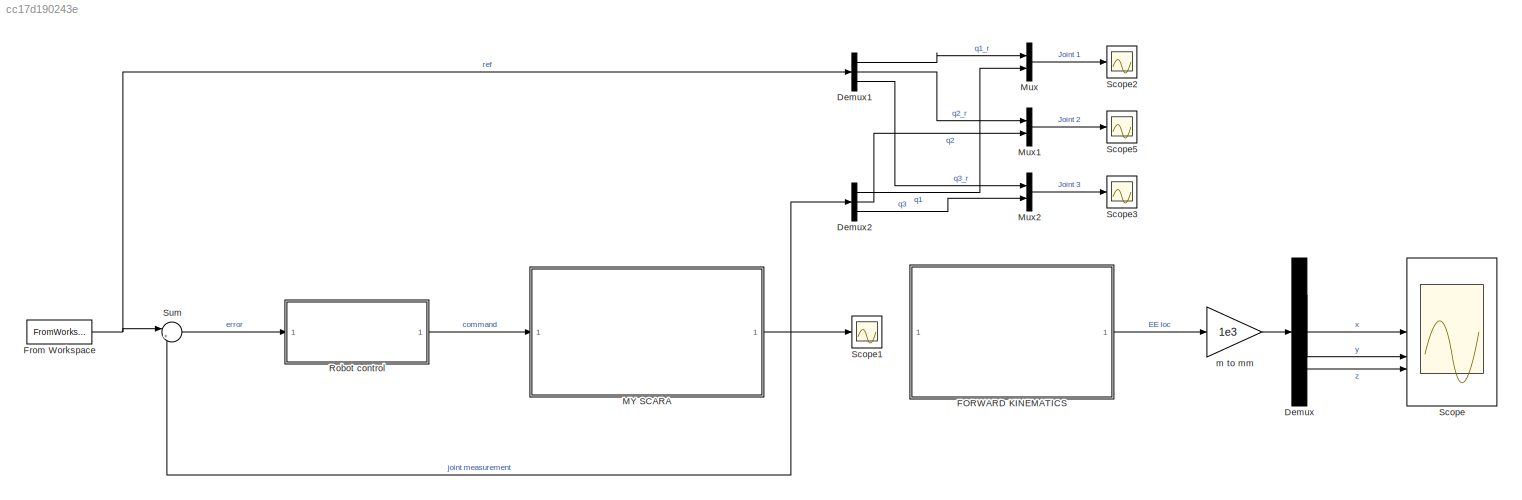
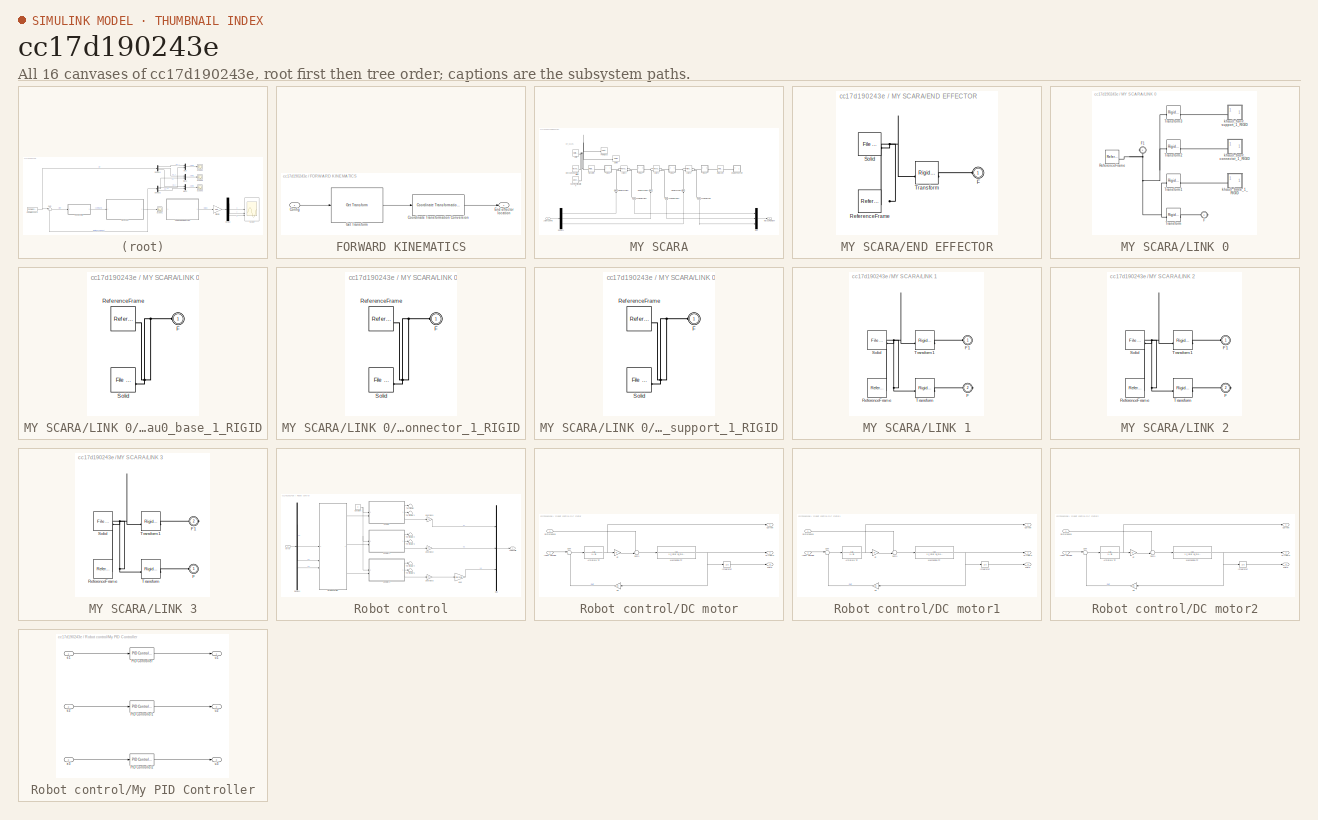
[diagram: thumbnail index - all 16 canvases of the model, root first then tree order]
MODEL slx_cc17d190243e
KIND model
CONFIG AbsTol = auto
CONFIG EnableMultiTasking = on
CONFIG FixedStep = 0.001
CONFIG MaxStep = auto
CONFIG MinStep = auto
CONFIG RelTol = 1e-3
CONFIG SampleTimeConstraint = Unconstrained
CONFIG SolverName = ode4
CONFIG StartTime = 0.0
CONFIG StopTime = 8
BLOCK [Demux] Demux
  Commented = on
  Outputs = 3
BLOCK [Demux] Demux1
  Outputs = 3
BLOCK [Demux] Demux2
  Outputs = 3
BLOCK [SubSystem] FORWARD KINEMATICS
  Commented = on
BLOCK [Inport] FORWARD KINEMATICS/Config
BLOCK [Reference] FORWARD KINEMATICS/Coordinate Transformation Conversion  REF=robotcorelib/Coordinate Transformation Conversion
  LibrarySourceBlock = robotutilslib/Coordinate Transformation Conversion
  SourceBlock = robotcorelib/Coordinate Transformation Conversion
  SourceType = robotics.slcore.internal.block.CoordinateTransformationConversion
BLOCK [Outport] FORWARD KINEMATICS/End effector location
BLOCK [Reference] FORWARD KINEMATICS/Get Transform  REF=robotmaniplib/Get Transform
  SourceBlock = robotmaniplib/Get Transform
  SourceType = Get Transform
BLOCK [FromWorkspace] From Workspace
  OutputAfterFinalValue = Holding final value
  VariableName = dataJoint_load
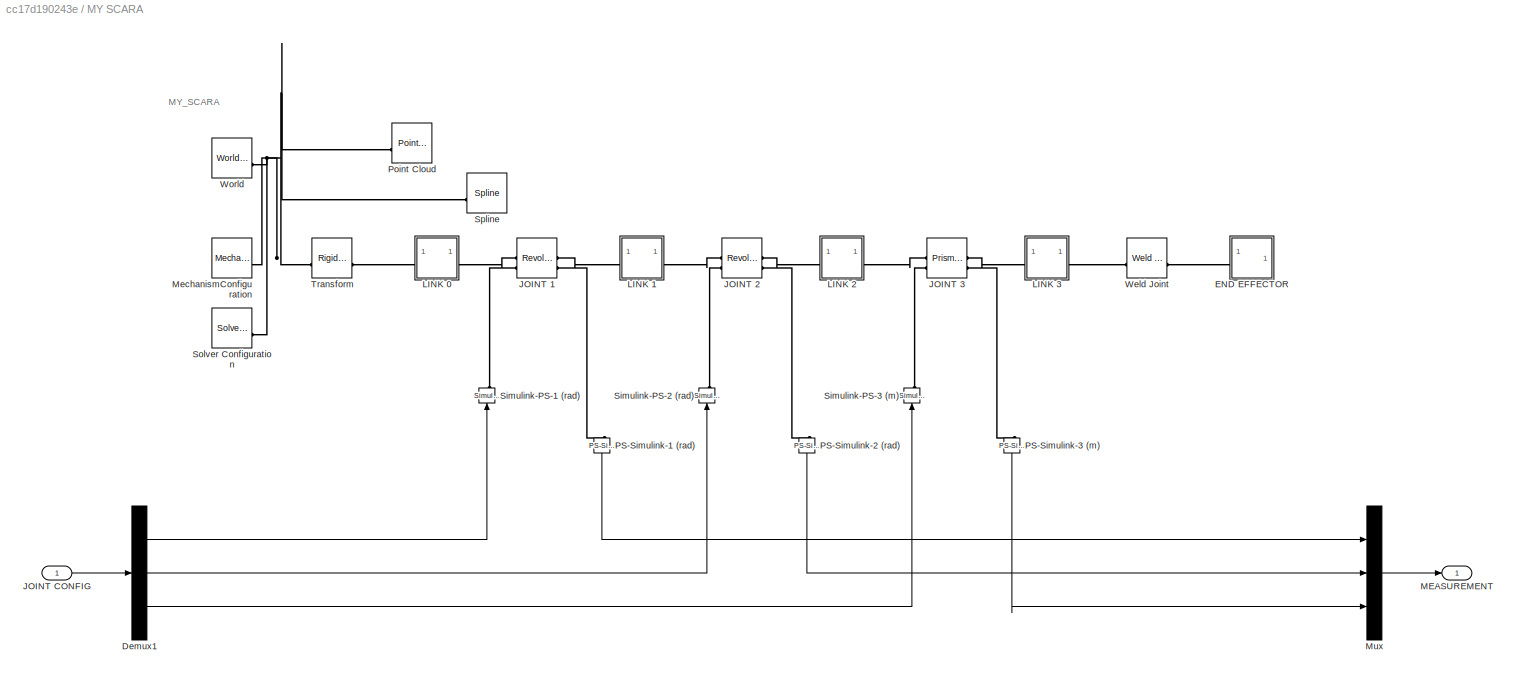
BLOCK [SubSystem] MY SCARA
BLOCK [Demux] MY SCARA/Demux1
  Outputs = 3
BLOCK [SubSystem] MY SCARA/END EFFECTOR
BLOCK [PMIOPort] MY SCARA/END EFFECTOR/F
  Side = Left
BLOCK [Reference] MY SCARA/END EFFECTOR/ReferenceFrame  REF=sm_lib/Frames and
Transforms/Reference
Frame
  SourceBlock = sm_lib/Frames and\nTransforms/Reference\nFrame
  SourceType = Reference\nFrame
BLOCK [Reference] MY SCARA/END EFFECTOR/Solid  REF=sm_lib/Body Elements/File Solid
  SourceBlock = sm_lib/Body Elements/File Solid
  SourceType = File Solid
BLOCK [Reference] MY SCARA/END EFFECTOR/Transform  REF=sm_lib/Frames and
Transforms/Rigid
Transform
  SourceBlock = sm_lib/Frames and\nTransforms/Rigid\nTransform
  SourceType = Rigid\nTransform
BLOCK [Reference] MY SCARA/JOINT 1  REF=sm_lib/Joints/Revolute Joint
  SourceBlock = sm_lib/Joints/Revolute Joint
  SourceType = Revolute Joint
BLOCK [Reference] MY SCARA/JOINT 2  REF=sm_lib/Joints/Revolute Joint
  SourceBlock = sm_lib/Joints/Revolute Joint
  SourceType = Revolute Joint
BLOCK [Reference] MY SCARA/JOINT 3  REF=sm_lib/Joints/Prismatic
Joint
  SourceBlock = sm_lib/Joints/Prismatic\nJoint
  SourceType = Prismatic\nJoint
BLOCK [Inport] MY SCARA/JOINT CONFIG
BLOCK [SubSystem] MY SCARA/LINK 0
BLOCK [PMIOPort] MY SCARA/LINK 0/F
  Port = 2
  Side = Right
BLOCK [PMIOPort] MY SCARA/LINK 0/F1
  Side = Left
BLOCK [Reference] MY SCARA/LINK 0/ReferenceFrame  REF=sm_lib/Frames and
Transforms/Reference
Frame
  SourceBlock = sm_lib/Frames and\nTransforms/Reference\nFrame
  SourceType = Reference\nFrame
BLOCK [Reference] MY SCARA/LINK 0/Transform  REF=sm_lib/Frames and
Transforms/Rigid
Transform
  SourceBlock = sm_lib/Frames and\nTransforms/Rigid\nTransform
  SourceType = Rigid\nTransform
BLOCK [Reference] MY SCARA/LINK 0/Transform1  REF=sm_lib/Frames and
Transforms/Rigid
Transform
  SourceBlock = sm_lib/Frames and\nTransforms/Rigid\nTransform
  SourceType = Rigid\nTransform
BLOCK [Reference] MY SCARA/LINK 0/Transform2  REF=sm_lib/Frames and
Transforms/Rigid
Transform
  SourceBlock = sm_lib/Frames and\nTransforms/Rigid\nTransform
  SourceType = Rigid\nTransform
BLOCK [Reference] MY SCARA/LINK 0/Transform3  REF=sm_lib/Frames and
Transforms/Rigid
Transform
  SourceBlock = sm_lib/Frames and\nTransforms/Rigid\nTransform
  SourceType = Rigid\nTransform
BLOCK [SubSystem] MY SCARA/LINK 0/khau0_base_1_RIGID
BLOCK [PMIOPort] MY SCARA/LINK 0/khau0_base_1_RIGID/F
  Side = Left
BLOCK [Reference] MY SCARA/LINK 0/khau0_base_1_RIGID/ReferenceFrame  REF=sm_lib/Frames and
Transforms/Reference
Frame
  SourceBlock = sm_lib/Frames and\nTransforms/Reference\nFrame
  SourceType = Reference\nFrame
BLOCK [Reference] MY SCARA/LINK 0/khau0_base_1_RIGID/Solid  REF=sm_lib/Body Elements/File Solid
  SourceBlock = sm_lib/Body Elements/File Solid
  SourceType = File Solid
BLOCK [SubSystem] MY SCARA/LINK 0/khau0_base_connector_1_RIGID
BLOCK [PMIOPort] MY SCARA/LINK 0/khau0_base_connector_1_RIGID/F
  Side = Left
BLOCK [Reference] MY SCARA/LINK 0/khau0_base_connector_1_RIGID/ReferenceFrame  REF=sm_lib/Frames and
Transforms/Reference
Frame
  SourceBlock = sm_lib/Frames and\nTransforms/Reference\nFrame
  SourceType = Reference\nFrame
BLOCK [Reference] MY SCARA/LINK 0/khau0_base_connector_1_RIGID/Solid  REF=sm_lib/Body Elements/File Solid
  SourceBlock = sm_lib/Body Elements/File Solid
  SourceType = File Solid
BLOCK [SubSystem] MY SCARA/LINK 0/khau0_base_support_1_RIGID
BLOCK [PMIOPort] MY SCARA/LINK 0/khau0_base_support_1_RIGID/F
  Side = Left
BLOCK [Reference] MY SCARA/LINK 0/khau0_base_support_1_RIGID/ReferenceFrame  REF=sm_lib/Frames and
Transforms/Reference
Frame
  SourceBlock = sm_lib/Frames and\nTransforms/Reference\nFrame
  SourceType = Reference\nFrame
BLOCK [Reference] MY SCARA/LINK 0/khau0_base_support_1_RIGID/Solid  REF=sm_lib/Body Elements/File Solid
  SourceBlock = sm_lib/Body Elements/File Solid
  SourceType = File Solid
BLOCK [SubSystem] MY SCARA/LINK 1
BLOCK [PMIOPort] MY SCARA/LINK 1/F
  Port = 2
  Side = Right
BLOCK [PMIOPort] MY SCARA/LINK 1/F1
  Side = Left
BLOCK [Reference] MY SCARA/LINK 1/ReferenceFrame  REF=sm_lib/Frames and
Transforms/Reference
Frame
  SourceBlock = sm_lib/Frames and\nTransforms/Reference\nFrame
  SourceType = Reference\nFrame
BLOCK [Reference] MY SCARA/LINK 1/Solid  REF=sm_lib/Body Elements/File Solid
  SourceBlock = sm_lib/Body Elements/File Solid
  SourceType = File Solid
BLOCK [Reference] MY SCARA/LINK 1/Transform  REF=sm_lib/Frames and
Transforms/Rigid
Transform
  SourceBlock = sm_lib/Frames and\nTransforms/Rigid\nTransform
  SourceType = Rigid\nTransform
BLOCK [Reference] MY SCARA/LINK 1/Transform1  REF=sm_lib/Frames and
Transforms/Rigid
Transform
  SourceBlock = sm_lib/Frames and\nTransforms/Rigid\nTransform
  SourceType = Rigid\nTransform
BLOCK [SubSystem] MY SCARA/LINK 2
BLOCK [PMIOPort] MY SCARA/LINK 2/F
  Port = 2
  Side = Right
BLOCK [PMIOPort] MY SCARA/LINK 2/F1
  Side = Left
BLOCK [Reference] MY SCARA/LINK 2/ReferenceFrame  REF=sm_lib/Frames and
Transforms/Reference
Frame
  SourceBlock = sm_lib/Frames and\nTransforms/Reference\nFrame
  SourceType = Reference\nFrame
BLOCK [Reference] MY SCARA/LINK 2/Solid  REF=sm_lib/Body Elements/File Solid
  SourceBlock = sm_lib/Body Elements/File Solid
  SourceType = File Solid
BLOCK [Reference] MY SCARA/LINK 2/Transform  REF=sm_lib/Frames and
Transforms/Rigid
Transform
  SourceBlock = sm_lib/Frames and\nTransforms/Rigid\nTransform
  SourceType = Rigid\nTransform
BLOCK [Reference] MY SCARA/LINK 2/Transform1  REF=sm_lib/Frames and
Transforms/Rigid
Transform
  SourceBlock = sm_lib/Frames and\nTransforms/Rigid\nTransform
  SourceType = Rigid\nTransform
BLOCK [SubSystem] MY SCARA/LINK 3
BLOCK [PMIOPort] MY SCARA/LINK 3/F
  Side = Left
BLOCK [PMIOPort] MY SCARA/LINK 3/F1
  Port = 2
  Side = Right
BLOCK [Reference] MY SCARA/LINK 3/ReferenceFrame  REF=sm_lib/Frames and
Transforms/Reference
Frame
  SourceBlock = sm_lib/Frames and\nTransforms/Reference\nFrame
  SourceType = Reference\nFrame
BLOCK [Reference] MY SCARA/LINK 3/Solid  REF=sm_lib/Body Elements/File Solid
  SourceBlock = sm_lib/Body Elements/File Solid
  SourceType = File Solid
BLOCK [Reference] MY SCARA/LINK 3/Transform  REF=sm_lib/Frames and
Transforms/Rigid
Transform
  SourceBlock = sm_lib/Frames and\nTransforms/Rigid\nTransform
  SourceType = Rigid\nTransform
BLOCK [Reference] MY SCARA/LINK 3/Transform1  REF=sm_lib/Frames and
Transforms/Rigid
Transform
  SourceBlock = sm_lib/Frames and\nTransforms/Rigid\nTransform
  SourceType = Rigid\nTransform
BLOCK [Outport] MY SCARA/MEASUREMENT
BLOCK [Reference] MY SCARA/MechanismConfiguration  REF=sm_lib/Utilities/Mechanism
Configuration
  SourceBlock = sm_lib/Utilities/Mechanism\nConfiguration
  SourceType = Mechanism\nConfiguration
BLOCK [Mux] MY SCARA/Mux
  DisplayOption = bar
  Inputs = 3
BLOCK [Reference] MY SCARA/PS-Simulink-1 (rad)  REF=nesl_utility/PS-Simulink
Converter
  NameLocation = left
  SourceBlock = nesl_utility/PS-Simulink\nConverter
  SourceType = PS-Simulink\nConverter
BLOCK [Reference] MY SCARA/PS-Simulink-2 (rad)  REF=nesl_utility/PS-Simulink
Converter
  NameLocation = left
  SourceBlock = nesl_utility/PS-Simulink\nConverter
  SourceType = PS-Simulink\nConverter
BLOCK [Reference] MY SCARA/PS-Simulink-3 (m)  REF=nesl_utility/PS-Simulink
Converter
  NameLocation = left
  SourceBlock = nesl_utility/PS-Simulink\nConverter
  SourceType = PS-Simulink\nConverter
BLOCK [Reference] MY SCARA/Point Cloud  REF=sm_lib/Curves and Surfaces/Point Cloud
  SourceBlock = sm_lib/Curves and Surfaces/Point Cloud
  SourceType = Point Cloud
BLOCK [Reference] MY SCARA/Simulink-PS-1 (rad)  REF=nesl_utility/Simulink-PS
Converter
  NameLocation = right
  SourceBlock = nesl_utility/Simulink-PS\nConverter
  SourceType = Simulink-PS\nConverter
BLOCK [Reference] MY SCARA/Simulink-PS-2 (rad)  REF=nesl_utility/Simulink-PS
Converter
  NameLocation = right
  SourceBlock = nesl_utility/Simulink-PS\nConverter
  SourceType = Simulink-PS\nConverter
BLOCK [Reference] MY SCARA/Simulink-PS-3 (m)  REF=nesl_utility/Simulink-PS
Converter
  NameLocation = right
  SourceBlock = nesl_utility/Simulink-PS\nConverter
  SourceType = Simulink-PS\nConverter
BLOCK [Reference] MY SCARA/Solver Configuration  REF=nesl_utility/Solver
Configuration
  SourceBlock = nesl_utility/Solver\nConfiguration
  SourceType = Solver\nConfiguration
BLOCK [Reference] MY SCARA/Spline  REF=sm_lib/Curves and Surfaces/Spline
  SourceBlock = sm_lib/Curves and Surfaces/Spline
  SourceType = Spline
BLOCK [Reference] MY SCARA/Transform  REF=sm_lib/Frames and
Transforms/Rigid
Transform
  SourceBlock = sm_lib/Frames and\nTransforms/Rigid\nTransform
  SourceType = Rigid\nTransform
BLOCK [Reference] MY SCARA/Weld Joint  REF=sm_lib/Joints/Weld Joint
  SourceBlock = sm_lib/Joints/Weld Joint
  SourceType = Weld Joint
BLOCK [Reference] MY SCARA/World  REF=sm_lib/Frames and
Transforms/World Frame
  SourceBlock = sm_lib/Frames and\nTransforms/World Frame
  SourceType = World Frame
BLOCK [Mux] Mux
  DisplayOption = bar
  Inputs = 2
BLOCK [Mux] Mux1
  DisplayOption = bar
  Inputs = 2
BLOCK [Mux] Mux2
  DisplayOption = bar
  Inputs = 2
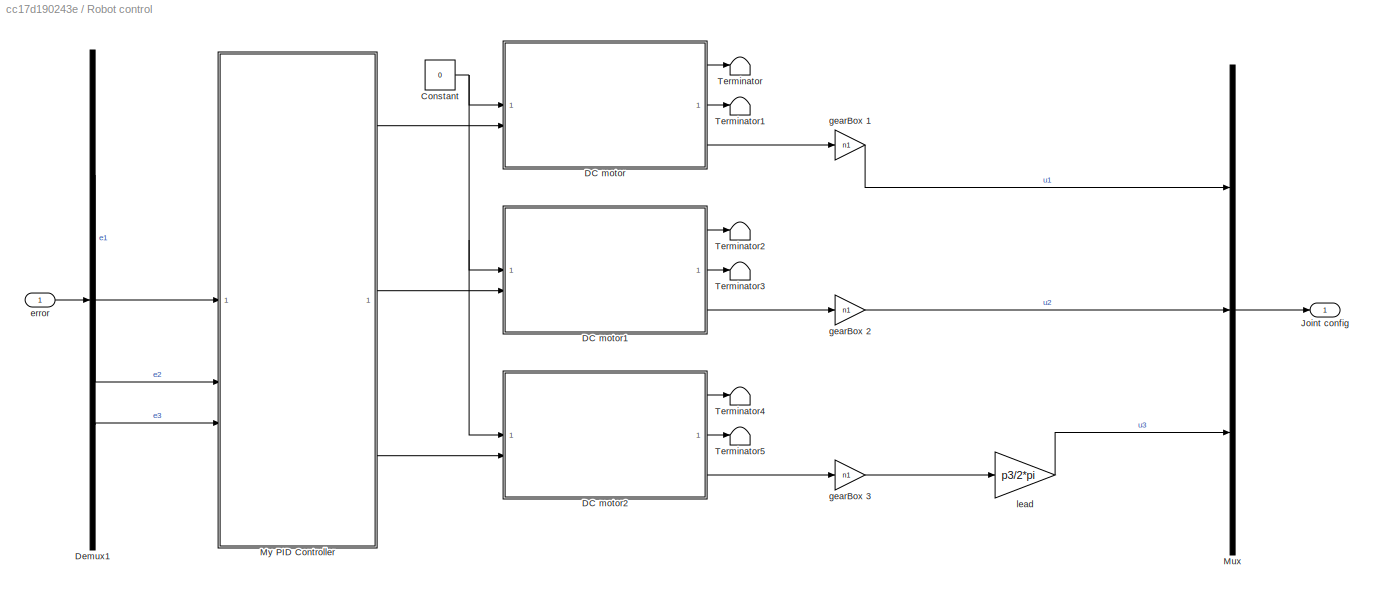
BLOCK [SubSystem] Robot control
BLOCK [Constant] Robot control/Constant
  Value = 0
BLOCK [SubSystem] Robot control/DC motor
BLOCK [TransferFcn] Robot control/DC motor/Armature TF
  Denominator = [L R]
BLOCK [Outport] Robot control/DC motor/Current
BLOCK [Inport] Robot control/DC motor/DIsturbance
BLOCK [Inport] Robot control/DC motor/Input voltage
  Port = 2
BLOCK [Integrator] Robot control/DC motor/Integrator
BLOCK [Gain] Robot control/DC motor/Ke
  Gain = Ke
BLOCK [Gain] Robot control/DC motor/Kt
  Gain = Kt
BLOCK [TransferFcn] Robot control/DC motor/Mechanical TF
  Denominator = [J_rotor B_motor]
BLOCK [Sum] Robot control/DC motor/Sum
  Inputs = |+-
BLOCK [Sum] Robot control/DC motor/Sum1
  Inputs = -+|
BLOCK [Outport] Robot control/DC motor/Theta
  Port = 3
BLOCK [Outport] Robot control/DC motor/w (rad//s)
  Port = 2
BLOCK [SubSystem] Robot control/DC motor1
BLOCK [TransferFcn] Robot control/DC motor1/Armature TF
  Denominator = [L R]
BLOCK [Outport] Robot control/DC motor1/Current
BLOCK [Inport] Robot control/DC motor1/DIsturbance
BLOCK [Inport] Robot control/DC motor1/Input voltage
  Port = 2
BLOCK [Integrator] Robot control/DC motor1/Integrator
BLOCK [Gain] Robot control/DC motor1/Ke
  Gain = Ke
BLOCK [Gain] Robot control/DC motor1/Kt
  Gain = Kt
BLOCK [TransferFcn] Robot control/DC motor1/Mechanical TF
  Denominator = [J_rotor B_motor]
BLOCK [Sum] Robot control/DC motor1/Sum
  Inputs = |+-
BLOCK [Sum] Robot control/DC motor1/Sum1
  Inputs = -+|
BLOCK [Outport] Robot control/DC motor1/Theta
  Port = 3
BLOCK [Outport] Robot control/DC motor1/w (rad//s)
  Port = 2
BLOCK [SubSystem] Robot control/DC motor2
BLOCK [TransferFcn] Robot control/DC motor2/Armature TF
  Denominator = [L R]
BLOCK [Outport] Robot control/DC motor2/Current
BLOCK [Inport] Robot control/DC motor2/DIsturbance
BLOCK [Inport] Robot control/DC motor2/Input voltage
  Port = 2
BLOCK [Integrator] Robot control/DC motor2/Integrator
BLOCK [Gain] Robot control/DC motor2/Ke
  Gain = Ke
BLOCK [Gain] Robot control/DC motor2/Kt
  Gain = Kt
BLOCK [TransferFcn] Robot control/DC motor2/Mechanical TF
  Denominator = [J_rotor B_motor]
BLOCK [Sum] Robot control/DC motor2/Sum
  Inputs = |+-
BLOCK [Sum] Robot control/DC motor2/Sum1
  Inputs = -+|
BLOCK [Outport] Robot control/DC motor2/Theta
  Port = 3
BLOCK [Outport] Robot control/DC motor2/w (rad//s)
  Port = 2
BLOCK [Demux] Robot control/Demux1
  Outputs = 3
BLOCK [Outport] Robot control/Joint config
BLOCK [Mux] Robot control/Mux
  DisplayOption = bar
  Inputs = 3
BLOCK [SubSystem] Robot control/My PID Controller
BLOCK [Reference] Robot control/My PID Controller/PID Controller  REF=slpidlib/PID Controller
  LibrarySourceBlock = simulink/Continuous/PID Controller
  SourceBlock = slpidlib/PID Controller
  SourceType = PID 1dof
BLOCK [Reference] Robot control/My PID Controller/PID Controller1  REF=slpidlib/PID Controller
  LibrarySourceBlock = simulink/Continuous/PID Controller
  SourceBlock = slpidlib/PID Controller
  SourceType = PID 1dof
BLOCK [Reference] Robot control/My PID Controller/PID Controller2  REF=slpidlib/PID Controller
  LibrarySourceBlock = simulink/Continuous/PID Controller
  SourceBlock = slpidlib/PID Controller
  SourceType = PID 1dof
BLOCK [Inport] Robot control/My PID Controller/e1
BLOCK [Inport] Robot control/My PID Controller/e2
  Port = 2
BLOCK [Inport] Robot control/My PID Controller/e3
  Port = 3
BLOCK [Outport] Robot control/My PID Controller/u1
BLOCK [Outport] Robot control/My PID Controller/u2
  Port = 2
BLOCK [Outport] Robot control/My PID Controller/u3
  Port = 3
BLOCK [Terminator] Robot control/Terminator
BLOCK [Terminator] Robot control/Terminator1
BLOCK [Terminator] Robot control/Terminator2
BLOCK [Terminator] Robot control/Terminator3
BLOCK [Terminator] Robot control/Terminator4
BLOCK [Terminator] Robot control/Terminator5
BLOCK [Inport] Robot control/error
BLOCK [Gain] Robot control/gearBox 1
  Gain = n1
BLOCK [Gain] Robot control/gearBox 2
  Gain = n1
BLOCK [Gain] Robot control/gearBox 3
  Gain = n1
BLOCK [Gain] Robot control/lead
  Gain = p3/2*pi
BLOCK [Scope] Scope
  Commented = on
  Floating = off
  NumInputPorts = 3
  ScopeSpecificationString = Simulink.scopes.TimeScopeBlockCfg('CurrentConfiguration', extmgr.ConfigurationSet(extmgr.Configuration('Core','General UI',true),extmgr.Configuration('Core','Source UI',true),extmgr.Configuration('Sources','WiredSimulink',true),extmgr.Configuration('Visuals','Time Domain',true,'SerializedDisplays',{struct('MinYLimReal','236.25','MaxYLimReal','873.75','YLabelReal','X','MinYLimMag','236.25','MaxYLim...<+3001ch>
BLOCK [Scope] Scope1
  Floating = off
  NumInputPorts = 1
  ScopeSpecificationString = Simulink.scopes.TimeScopeBlockCfg('CurrentConfiguration', extmgr.ConfigurationSet(extmgr.Configuration('Core','General UI',true),extmgr.Configuration('Core','Source UI',true),extmgr.Configuration('Sources','WiredSimulink',true,'DataLoggingVariableName','ScopeData1'),extmgr.Configuration('Visuals','Time Domain',true),extmgr.Configuration('Tools','Plot Navigation',true),extmgr.Configuration('Tools',...<+40ch>
BLOCK [Scope] Scope2
  Floating = off
  NumInputPorts = 1
  ScopeSpecificationString = Simulink.scopes.TimeScopeBlockCfg('CurrentConfiguration', extmgr.ConfigurationSet(extmgr.Configuration('Core','General UI',true,'FigureColor',[1 1 1]),extmgr.Configuration('Core','Source UI',true),extmgr.Configuration('Sources','WiredSimulink',true,'DataLoggingVariableName','ScopeData1'),extmgr.Configuration('Visuals','Time Domain',true,'SerializedDisplays',{struct('MinYLimReal','-2.08219','MaxYLi...<+1675ch>
BLOCK [Scope] Scope3
  Floating = off
  NumInputPorts = 1
  ScopeSpecificationString = Simulink.scopes.TimeScopeBlockCfg('CurrentConfiguration', extmgr.ConfigurationSet(extmgr.Configuration('Core','General UI',true,'FigureColor',[1 1 1]),extmgr.Configuration('Core','Source UI',true),extmgr.Configuration('Sources','WiredSimulink',true,'DataLoggingVariableName','ScopeData2'),extmgr.Configuration('Visuals','Time Domain',true,'SerializedDisplays',{struct('MinYLimReal','-0.04574','MaxYLi...<+1669ch>
BLOCK [Scope] Scope5
  Floating = off
  NumInputPorts = 1
  ScopeSpecificationString = Simulink.scopes.TimeScopeBlockCfg('CurrentConfiguration', extmgr.ConfigurationSet(extmgr.Configuration('Core','General UI',true,'FigureColor',[1 1 1]),extmgr.Configuration('Core','Source UI',true),extmgr.Configuration('Sources','WiredSimulink',true,'DataLoggingVariableName','ScopeData4'),extmgr.Configuration('Visuals','Time Domain',true,'SerializedDisplays',{struct('MinYLimReal','-0.25968','MaxYLi...<+1671ch>
BLOCK [Sum] Sum
  Inputs = |+-
BLOCK [Gain] m to mm
  Commented = on
  Gain = 1e3
ANNOTATION MY SCARA: MY_SCARA
LINE Demux1:1 -> Mux:1
LINE Demux1:2 -> Mux1:1
LINE Demux1:3 -> Mux2:1
LINE Demux2:1 -> Mux:2
LINE Demux2:2 -> Mux1:2
LINE Demux2:3 -> Mux2:2
LINE Demux:1 -> Scope:1
LINE Demux:2 -> Scope:2
LINE Demux:3 -> Scope:3
LINE FORWARD KINEMATICS/Config:1 -> FORWARD KINEMATICS/Get Transform:1
LINE FORWARD KINEMATICS/Coordinate Transformation Conversion:1 -> FORWARD KINEMATICS/End effector location:1
LINE FORWARD KINEMATICS/Get Transform:1 -> FORWARD KINEMATICS/Coordinate Transformation Conversion:1
LINE FORWARD KINEMATICS:1 -> m to mm:1
NET From Workspace:1 -> Demux1:1, Sum:1
LINE MY SCARA/Demux1:1 -> MY SCARA/Simulink-PS-1 (rad):1
LINE MY SCARA/Demux1:2 -> MY SCARA/Simulink-PS-2 (rad):1
LINE MY SCARA/Demux1:3 -> MY SCARA/Simulink-PS-3 (m):1
LINE MY SCARA/JOINT CONFIG:1 -> MY SCARA/Demux1:1
LINE MY SCARA/Mux:1 -> MY SCARA/MEASUREMENT:1
LINE MY SCARA/PS-Simulink-1 (rad):1 -> MY SCARA/Mux:1
LINE MY SCARA/PS-Simulink-2 (rad):1 -> MY SCARA/Mux:2
LINE MY SCARA/PS-Simulink-3 (m):1 -> MY SCARA/Mux:3
NET MY SCARA:1 -> Demux2:1, Scope1:1, Sum:2
LINE Mux1:1 -> Scope5:1
LINE Mux2:1 -> Scope3:1
LINE Mux:1 -> Scope2:1
NET Robot control/Constant:1 -> Robot control/DC motor1:1, Robot control/DC motor2:1, Robot control/DC motor:1
NET Robot control/DC motor/Armature TF:1 -> Robot control/DC motor/Current:1, Robot control/DC motor/Kt:1
LINE Robot control/DC motor/DIsturbance:1 -> Robot control/DC motor/Sum1:1
LINE Robot control/DC motor/Input voltage:1 -> Robot control/DC motor/Sum:1
LINE Robot control/DC motor/Integrator:1 -> Robot control/DC motor/Theta:1
LINE Robot control/DC motor/Ke:1 -> Robot control/DC motor/Sum:2
LINE Robot control/DC motor/Kt:1 -> Robot control/DC motor/Sum1:2
NET Robot control/DC motor/Mechanical TF:1 -> Robot control/DC motor/Integrator:1, Robot control/DC motor/Ke:1, Robot control/DC motor/w (rad//s):1
LINE Robot control/DC motor/Sum1:1 -> Robot control/DC motor/Mechanical TF:1
LINE Robot control/DC motor/Sum:1 -> Robot control/DC motor/Armature TF:1
NET Robot control/DC motor1/Armature TF:1 -> Robot control/DC motor1/Current:1, Robot control/DC motor1/Kt:1
LINE Robot control/DC motor1/DIsturbance:1 -> Robot control/DC motor1/Sum1:1
LINE Robot control/DC motor1/Input voltage:1 -> Robot control/DC motor1/Sum:1
LINE Robot control/DC motor1/Integrator:1 -> Robot control/DC motor1/Theta:1
LINE Robot control/DC motor1/Ke:1 -> Robot control/DC motor1/Sum:2
LINE Robot control/DC motor1/Kt:1 -> Robot control/DC motor1/Sum1:2
NET Robot control/DC motor1/Mechanical TF:1 -> Robot control/DC motor1/Integrator:1, Robot control/DC motor1/Ke:1, Robot control/DC motor1/w (rad//s):1
LINE Robot control/DC motor1/Sum1:1 -> Robot control/DC motor1/Mechanical TF:1
LINE Robot control/DC motor1/Sum:1 -> Robot control/DC motor1/Armature TF:1
LINE Robot control/DC motor1:1 -> Robot control/Terminator2:1
LINE Robot control/DC motor1:2 -> Robot control/Terminator3:1
LINE Robot control/DC motor1:3 -> Robot control/gearBox 2:1
NET Robot control/DC motor2/Armature TF:1 -> Robot control/DC motor2/Current:1, Robot control/DC motor2/Kt:1
LINE Robot control/DC motor2/DIsturbance:1 -> Robot control/DC motor2/Sum1:1
LINE Robot control/DC motor2/Input voltage:1 -> Robot control/DC motor2/Sum:1
LINE Robot control/DC motor2/Integrator:1 -> Robot control/DC motor2/Theta:1
LINE Robot control/DC motor2/Ke:1 -> Robot control/DC motor2/Sum:2
LINE Robot control/DC motor2/Kt:1 -> Robot control/DC motor2/Sum1:2
NET Robot control/DC motor2/Mechanical TF:1 -> Robot control/DC motor2/Integrator:1, Robot control/DC motor2/Ke:1, Robot control/DC motor2/w (rad//s):1
LINE Robot control/DC motor2/Sum1:1 -> Robot control/DC motor2/Mechanical TF:1
LINE Robot control/DC motor2/Sum:1 -> Robot control/DC motor2/Armature TF:1
LINE Robot control/DC motor2:1 -> Robot control/Terminator4:1
LINE Robot control/DC motor2:2 -> Robot control/Terminator5:1
LINE Robot control/DC motor2:3 -> Robot control/gearBox 3:1
LINE Robot control/DC motor:1 -> Robot control/Terminator:1
LINE Robot control/DC motor:2 -> Robot control/Terminator1:1
LINE Robot control/DC motor:3 -> Robot control/gearBox 1:1
LINE Robot control/Demux1:1 -> Robot control/My PID Controller:1
LINE Robot control/Demux1:2 -> Robot control/My PID Controller:2
LINE Robot control/Demux1:3 -> Robot control/My PID Controller:3
LINE Robot control/Mux:1 -> Robot control/Joint config:1
LINE Robot control/My PID Controller/PID Controller1:1 -> Robot control/My PID Controller/u2:1
LINE Robot control/My PID Controller/PID Controller2:1 -> Robot control/My PID Controller/u3:1
LINE Robot control/My PID Controller/PID Controller:1 -> Robot control/My PID Controller/u1:1
LINE Robot control/My PID Controller/e1:1 -> Robot control/My PID Controller/PID Controller:1
LINE Robot control/My PID Controller/e2:1 -> Robot control/My PID Controller/PID Controller1:1
LINE Robot control/My PID Controller/e3:1 -> Robot control/My PID Controller/PID Controller2:1
LINE Robot control/My PID Controller:1 -> Robot control/DC motor:2
LINE Robot control/My PID Controller:2 -> Robot control/DC motor1:2
LINE Robot control/My PID Controller:3 -> Robot control/DC motor2:2
LINE Robot control/error:1 -> Robot control/Demux1:1
LINE Robot control/gearBox 1:1 -> Robot control/Mux:1
LINE Robot control/gearBox 2:1 -> Robot control/Mux:2
LINE Robot control/gearBox 3:1 -> Robot control/lead:1
LINE Robot control/lead:1 -> Robot control/Mux:3
LINE Robot control:1 -> MY SCARA:1
LINE Sum:1 -> Robot control:1
LINE m to mm:1 -> Demux:1
PLINE MY SCARA/END EFFECTOR/F:RConn1 -- MY SCARA/END EFFECTOR/Transform:RConn1
PNET net1: MY SCARA/END EFFECTOR/ReferenceFrame:RConn1 -- MY SCARA/END EFFECTOR/Solid:RConn1 -- MY SCARA/END EFFECTOR/Transform:LConn1
PLINE MY SCARA/END EFFECTOR:LConn1 -- MY SCARA/Weld Joint:RConn1
PLINE MY SCARA/JOINT 1:LConn1 -- MY SCARA/LINK 0:RConn1
PLINE MY SCARA/JOINT 1:LConn2 -- MY SCARA/Simulink-PS-1 (rad):RConn1
PLINE MY SCARA/JOINT 1:RConn1 -- MY SCARA/LINK 1:LConn1
PLINE MY SCARA/JOINT 1:RConn2 -- MY SCARA/PS-Simulink-1 (rad):LConn1
PLINE MY SCARA/JOINT 2:LConn1 -- MY SCARA/LINK 1:RConn1
PLINE MY SCARA/JOINT 2:LConn2 -- MY SCARA/Simulink-PS-2 (rad):RConn1
PLINE MY SCARA/JOINT 2:RConn1 -- MY SCARA/LINK 2:LConn1
PLINE MY SCARA/JOINT 2:RConn2 -- MY SCARA/PS-Simulink-2 (rad):LConn1
PLINE MY SCARA/JOINT 3:LConn1 -- MY SCARA/LINK 2:RConn1
PLINE MY SCARA/JOINT 3:LConn2 -- MY SCARA/Simulink-PS-3 (m):RConn1
PLINE MY SCARA/JOINT 3:RConn1 -- MY SCARA/LINK 3:LConn1
PLINE MY SCARA/JOINT 3:RConn2 -- MY SCARA/PS-Simulink-3 (m):LConn1
PNET net2: MY SCARA/LINK 0/F1:RConn1 -- MY SCARA/LINK 0/ReferenceFrame:RConn1 -- MY SCARA/LINK 0/Transform1:LConn1 -- MY SCARA/LINK 0/Transform2:LConn1 -- MY SCARA/LINK 0/Transform3:LConn1 -- MY SCARA/LINK 0/Transform:LConn1
PLINE MY SCARA/LINK 0/F:RConn1 -- MY SCARA/LINK 0/Transform:RConn1
PLINE MY SCARA/LINK 0/Transform1:RConn1 -- MY SCARA/LINK 0/khau0_base_1_RIGID:LConn1
PLINE MY SCARA/LINK 0/Transform2:RConn1 -- MY SCARA/LINK 0/khau0_base_connector_1_RIGID:LConn1
PLINE MY SCARA/LINK 0/Transform3:RConn1 -- MY SCARA/LINK 0/khau0_base_support_1_RIGID:LConn1
PNET net3: MY SCARA/LINK 0/khau0_base_1_RIGID/F:RConn1 -- MY SCARA/LINK 0/khau0_base_1_RIGID/ReferenceFrame:RConn1 -- MY SCARA/LINK 0/khau0_base_1_RIGID/Solid:RConn1
PNET net4: MY SCARA/LINK 0/khau0_base_connector_1_RIGID/F:RConn1 -- MY SCARA/LINK 0/khau0_base_connector_1_RIGID/ReferenceFrame:RConn1 -- MY SCARA/LINK 0/khau0_base_connector_1_RIGID/Solid:RConn1
PNET net5: MY SCARA/LINK 0/khau0_base_support_1_RIGID/F:RConn1 -- MY SCARA/LINK 0/khau0_base_support_1_RIGID/ReferenceFrame:RConn1 -- MY SCARA/LINK 0/khau0_base_support_1_RIGID/Solid:RConn1
PLINE MY SCARA/LINK 0:LConn1 -- MY SCARA/Transform:RConn1
PLINE MY SCARA/LINK 1/F1:RConn1 -- MY SCARA/LINK 1/Transform1:RConn1
PLINE MY SCARA/LINK 1/F:RConn1 -- MY SCARA/LINK 1/Transform:RConn1
PNET net6: MY SCARA/LINK 1/ReferenceFrame:RConn1 -- MY SCARA/LINK 1/Solid:RConn1 -- MY SCARA/LINK 1/Transform1:LConn1 -- MY SCARA/LINK 1/Transform:LConn1
PLINE MY SCARA/LINK 2/F1:RConn1 -- MY SCARA/LINK 2/Transform1:RConn1
PLINE MY SCARA/LINK 2/F:RConn1 -- MY SCARA/LINK 2/Transform:RConn1
PNET net7: MY SCARA/LINK 2/ReferenceFrame:RConn1 -- MY SCARA/LINK 2/Solid:RConn1 -- MY SCARA/LINK 2/Transform1:LConn1 -- MY SCARA/LINK 2/Transform:LConn1
PLINE MY SCARA/LINK 3/F1:RConn1 -- MY SCARA/LINK 3/Transform1:RConn1
PLINE MY SCARA/LINK 3/F:RConn1 -- MY SCARA/LINK 3/Transform:RConn1
PNET net8: MY SCARA/LINK 3/ReferenceFrame:RConn1 -- MY SCARA/LINK 3/Solid:RConn1 -- MY SCARA/LINK 3/Transform1:LConn1 -- MY SCARA/LINK 3/Transform:LConn1
PLINE MY SCARA/LINK 3:RConn1 -- MY SCARA/Weld Joint:LConn1
PNET net9: MY SCARA/MechanismConfiguration:RConn1 -- MY SCARA/Point Cloud:LConn1 -- MY SCARA/Solver Configuration:RConn1 -- MY SCARA/Spline:LConn1 -- MY SCARA/Transform:LConn1 -- MY SCARA/World:RConn1
note: NET lines group one-source signal fan-out (src -> all destinations, sorted); 1:1 wires keep LINE; PNET lines group multi-terminal physical nets as a canonical sorted terminal list (undirected conserving connections); 2-terminal nets keep the pairwise PLINE form
